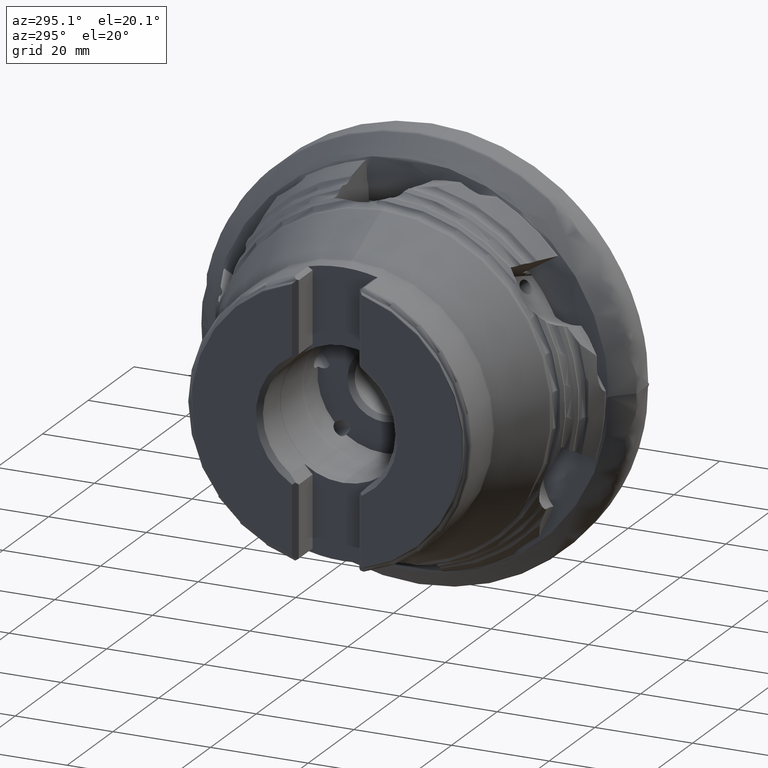
[diagram: clean part render]
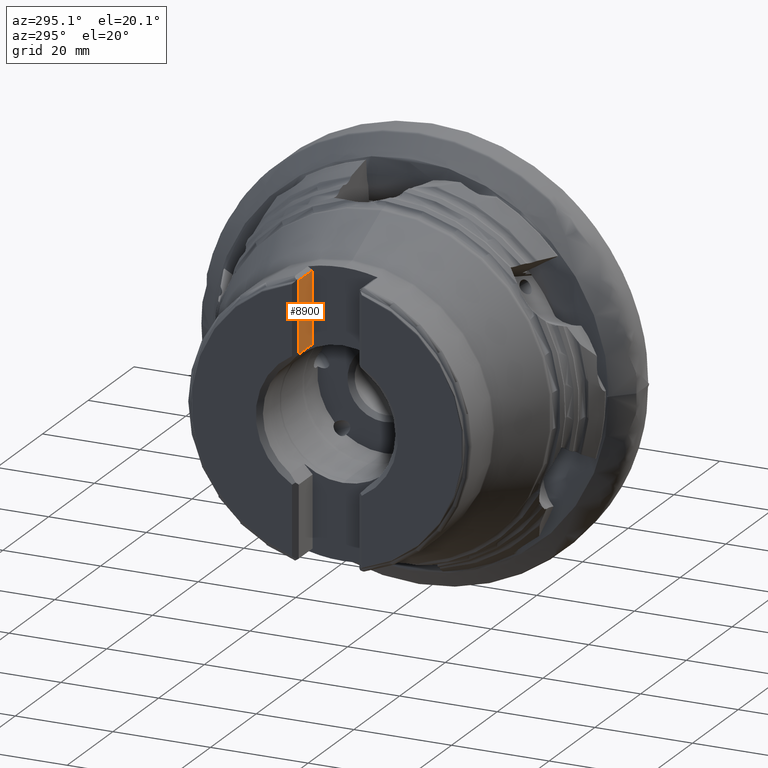
[diagram: same view with one face highlighted and labeled with its STEP entity id]
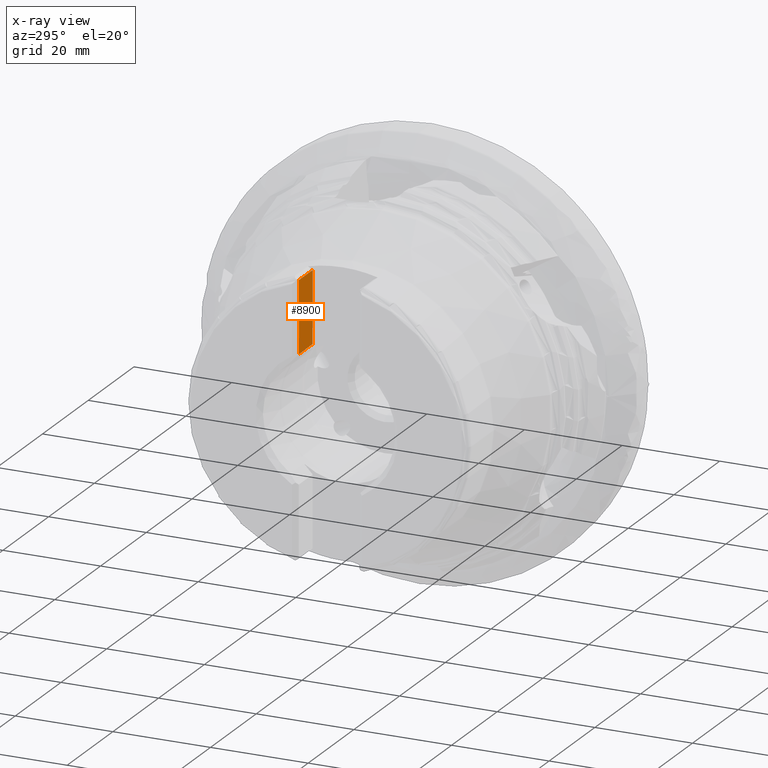
[diagram: x-ray of the same camera — body ghosted, the highlighted face saturated]
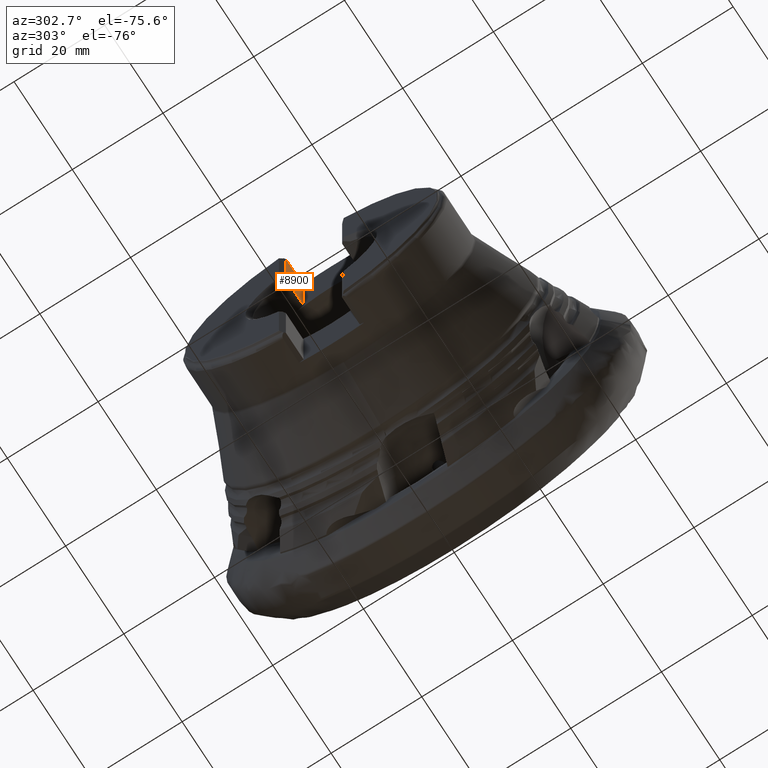
[diagram: same view with one face highlighted and labeled with its STEP entity id]
A machine part, auxiliary view. The second image highlights one B-rep face of the part: STEP entity #8900.
The next image is the same camera in x-ray: the body ghosted, the highlighted face saturated — about 0% of this face is hidden behind the body in this view.
A second angle (auxiliary view) of the same face is appended — the face is thin or edge-on in the first view.
In plain terms, the highlighted planar face has unit normal (-0, 1, 0).
Its self-contained STEP definition (entity closure, byte-faithful):
#180 = VECTOR ( 'NONE', #10063, 1000.000000000000000 ) ;
#473 = LINE ( 'NONE', #7339, #3367 ) ;
#593 = CARTESIAN_POINT ( 'NONE',  ( -48.15399999999999600, 6.199999999999994000, -75.00000000000000000 ) ) ;
#667 = AXIS2_PLACEMENT_3D ( 'NONE', #593, #7695, #2165 ) ;
#939 = VERTEX_POINT ( 'NONE', #2297 ) ;
#1306 = DIRECTION ( 'NONE',  ( -1.000000000000000000, 0.0000000000000000000, 0.0000000000000000000 ) ) ;
#1505 = CARTESIAN_POINT ( 'NONE',  ( -48.15399999999999600, 6.199999999999994000, 12.87078501993769900 ) ) ;
#1619 = LINE ( 'NONE', #1505, #9071 ) ;
#2165 = DIRECTION ( 'NONE',  ( 0.0000000000000000000, -0.0000000000000000000, 1.000000000000000000 ) ) ;
#2272 = CARTESIAN_POINT ( 'NONE',  ( -48.15399999999999600, 6.199999999999995700, 27.48962812295473100 ) ) ;
#2297 = CARTESIAN_POINT ( 'NONE',  ( -42.10399999999997800, 6.199999999999994000, 12.87078501993769900 ) ) ;
#2473 = ORIENTED_EDGE ( 'NONE', *, *, #9865, .T. ) ;
#2574 = VERTEX_POINT ( 'NONE', #9864 ) ;
#2621 = LINE ( 'NONE', #5372, #5618 ) ;
#2679 = EDGE_CURVE ( 'NONE', #5503, #10174, #9866, .T. ) ;
#3170 = ORIENTED_EDGE ( 'NONE', *, *, #2679, .F. ) ;
#3367 = VECTOR ( 'NONE', #8339, 1000.000000000000000 ) ;
#3568 = ORIENTED_EDGE ( 'NONE', *, *, #8975, .T. ) ;
#5372 = CARTESIAN_POINT ( 'NONE',  ( -47.60399999999992800, 6.199999999999994000, 27.48962812295470900 ) ) ;
#5503 = VERTEX_POINT ( 'NONE', #6690 ) ;
#5618 = VECTOR ( 'NONE', #1306, 1000.000000000000000 ) ;
#6313 = ORIENTED_EDGE ( 'NONE', *, *, #8873, .T. ) ;
#6690 = CARTESIAN_POINT ( 'NONE',  ( -48.15399999999999600, 6.199999999999994000, 12.87078501993769900 ) ) ;
#6882 = EDGE_LOOP ( 'NONE', ( #3170, #3568, #2473, #6313 ) ) ;
#7005 = PLANE ( 'NONE',  #667 ) ;
#7065 = DIRECTION ( 'NONE',  ( 1.000000000000000000, 0.0000000000000000000, 0.0000000000000000000 ) ) ;
#7339 = CARTESIAN_POINT ( 'NONE',  ( -42.10399999999997800, 6.199999999999994000, -75.00000000000000000 ) ) ;
#7695 = DIRECTION ( 'NONE',  ( -0.0000000000000000000, 1.000000000000000000, 0.0000000000000000000 ) ) ;
#7709 = CARTESIAN_POINT ( 'NONE',  ( -48.15399999999999600, 6.199999999999994000, -75.00000000000000000 ) ) ;
#8339 = DIRECTION ( 'NONE',  ( -0.0000000000000000000, -0.0000000000000000000, 1.000000000000000000 ) ) ;
#8873 = EDGE_CURVE ( 'NONE', #2574, #10174, #2621, .T. ) ;
#8900 = ADVANCED_FACE ( 'NONE', ( #8966 ), #7005, .F. ) ;
#8966 = FACE_OUTER_BOUND ( 'NONE', #6882, .T. ) ;
#8975 = EDGE_CURVE ( 'NONE', #5503, #939, #1619, .T. ) ;
#9071 = VECTOR ( 'NONE', #7065, 1000.000000000000000 ) ;
#9864 = CARTESIAN_POINT ( 'NONE',  ( -42.10399999999997800, 6.199999999999994000, 27.48962812295470600 ) ) ;
#9865 = EDGE_CURVE ( 'NONE', #939, #2574, #473, .T. ) ;
#9866 = LINE ( 'NONE', #7709, #180 ) ;
#10063 = DIRECTION ( 'NONE',  ( -0.0000000000000000000, -0.0000000000000000000, 1.000000000000000000 ) ) ;
#10174 = VERTEX_POINT ( 'NONE', #2272 ) ;